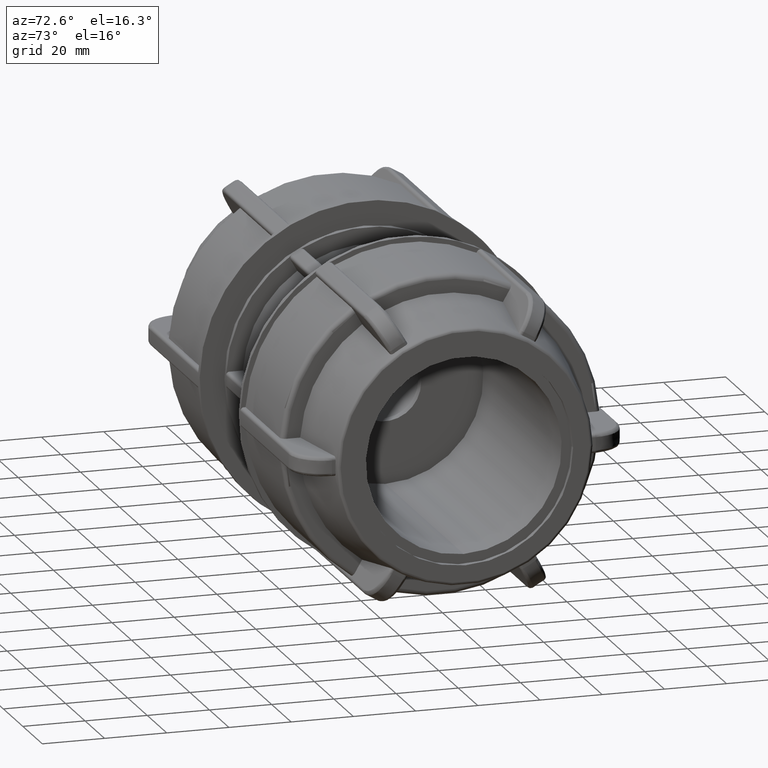
[diagram: clean part render]
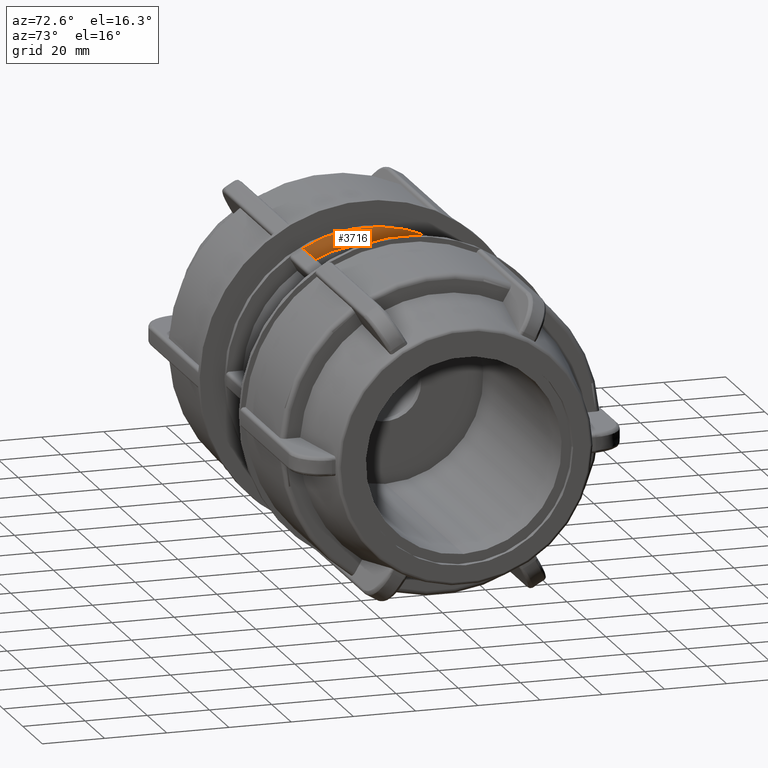
[diagram: same view with one face highlighted and labeled with its STEP entity id]
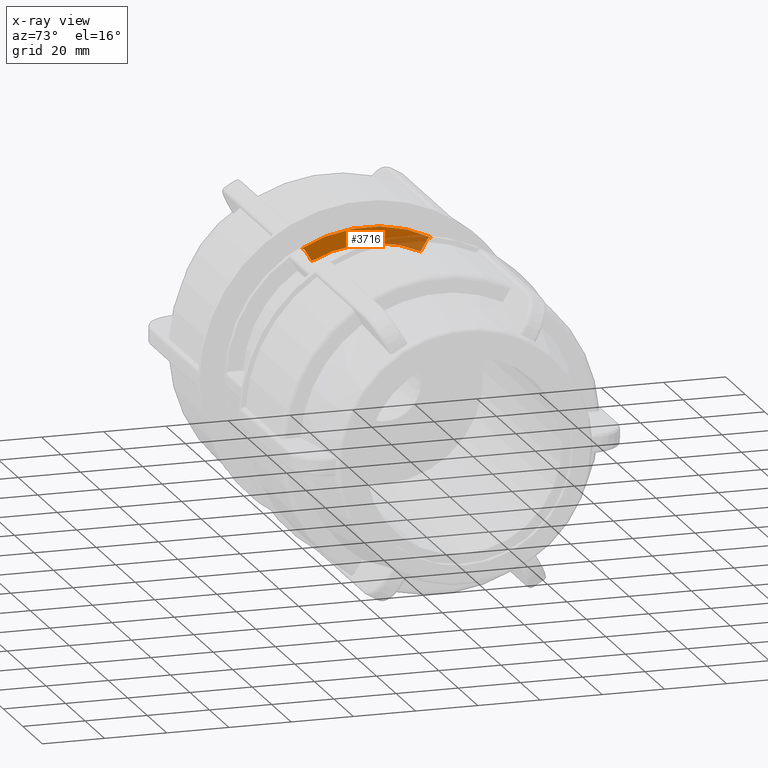
[diagram: x-ray of the same camera — body ghosted, the highlighted face saturated]
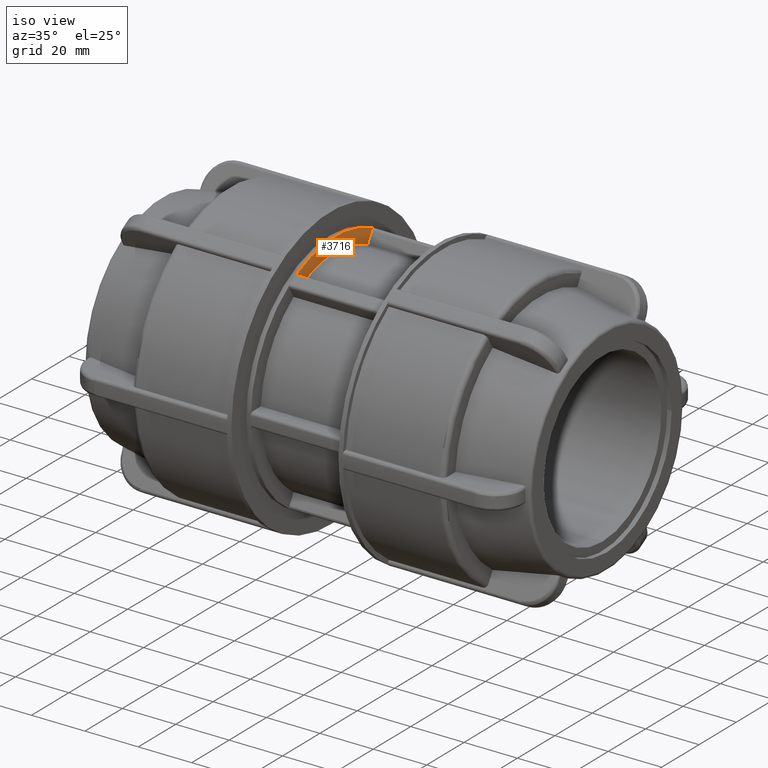
[diagram: same view with one face highlighted and labeled with its STEP entity id]
A machine part, auxiliary view. The second image highlights one B-rep face of the part: STEP entity #3716.
The next image is the same camera in x-ray: the body ghosted, the highlighted face saturated — about 24% of this face is hidden behind the body in this view.
A second angle (iso view) of the same face is appended — the face is thin or edge-on in the first view.
In plain terms, the highlighted planar face has unit normal (-1, -0, 0).
Its self-contained STEP definition (entity closure, byte-faithful):
#227=PLANE('',#3987);
#330=FACE_OUTER_BOUND('',#567,.T.);
#567=EDGE_LOOP('',(#2571,#2572,#2573,#2574,#2575,#2576));
#795=LINE('',#5488,#1023);
#831=LINE('',#5625,#1059);
#1023=VECTOR('',#4377,4.29968736925098);
#1059=VECTOR('',#4509,4.29968736925101);
#1248=CIRCLE('',#3925,1.06);
#1252=CIRCLE('',#3932,45.05);
#1268=CIRCLE('',#3951,1.06);
#1286=CIRCLE('',#3988,39.75);
#1483=VERTEX_POINT('',#5478);
#1484=VERTEX_POINT('',#5480);
#1486=VERTEX_POINT('',#5486);
#1492=VERTEX_POINT('',#5501);
#1518=VERTEX_POINT('',#5560);
#1539=VERTEX_POINT('',#5624);
#1861=EDGE_CURVE('',#1483,#1484,#1248,.F.);
#1865=EDGE_CURVE('',#1483,#1486,#795,.T.);
#1871=EDGE_CURVE('',#1492,#1484,#1252,.T.);
#1901=EDGE_CURVE('',#1492,#1518,#1268,.F.);
#1933=EDGE_CURVE('',#1539,#1518,#831,.T.);
#1951=EDGE_CURVE('',#1539,#1486,#1286,.T.);
#2571=ORIENTED_EDGE('',*,*,#1865,.T.);
#2572=ORIENTED_EDGE('',*,*,#1951,.F.);
#2573=ORIENTED_EDGE('',*,*,#1933,.T.);
#2574=ORIENTED_EDGE('',*,*,#1901,.F.);
#2575=ORIENTED_EDGE('',*,*,#1871,.T.);
#2576=ORIENTED_EDGE('',*,*,#1861,.F.);
#3716=ADVANCED_FACE('',(#330),#227,.F.);
#3925=AXIS2_PLACEMENT_3D('',#5481,#4370,#4371);
#3932=AXIS2_PLACEMENT_3D('',#5502,#4390,#4391);
#3951=AXIS2_PLACEMENT_3D('',#5561,#4442,#4443);
#3987=AXIS2_PLACEMENT_3D('',#5659,#4546,#4547);
#3988=AXIS2_PLACEMENT_3D('',#5660,#4548,#4549);
#4370=DIRECTION('center_axis',(-1.,-3.06161699786838E-16,0.));
#4371=DIRECTION('ref_axis',(0.,0.27623610487573,0.9610898055661));
#4377=DIRECTION('',(-1.53080849893419E-16,0.499999999999999,-0.866025403784439));
#4390=DIRECTION('center_axis',(1.,3.06161699786838E-16,0.));
#4391=DIRECTION('ref_axis',(0.,0.,-1.));
#4442=DIRECTION('center_axis',(-1.,-3.06161699786838E-16,0.));
#4443=DIRECTION('ref_axis',(0.,-0.276236104875726,0.961089805566101));
#4509=DIRECTION('',(-1.53080849893419E-16,0.5,0.866025403784438));
#4546=DIRECTION('center_axis',(-1.,-3.06161699786838E-16,0.));
#4547=DIRECTION('ref_axis',(0.,0.,1.));
#4548=DIRECTION('center_axis',(1.,3.06161699786838E-16,0.));
#4549=DIRECTION('ref_axis',(0.,0.,-1.));
#5478=CARTESIAN_POINT('',(-18.37,-19.6856605144986,39.3965641916641));
#5480=CARTESIAN_POINT('',(-18.37,-21.1001208748598,39.8031079071259));
#5481=CARTESIAN_POINT('Origin',(-18.37,-20.6036474425101,38.8665641916641));
#5486=CARTESIAN_POINT('',(-18.37,-17.5358168298731,35.6729257015617));
#5488=CARTESIAN_POINT('',(-18.37,-3.31678050083735,11.044832345004));
#5501=CARTESIAN_POINT('',(-18.37,21.1001208748598,39.8031079071259));
#5502=CARTESIAN_POINT('Origin',(-18.37,-5.62419042508422E-15,0.));
#5560=CARTESIAN_POINT('',(-18.37,19.6856605144986,39.3965641916641));
#5561=CARTESIAN_POINT('Origin',(-18.37,20.6036474425101,38.8665641916641));
#5624=CARTESIAN_POINT('',(-18.37,17.5358168298731,35.6729257015617));
#5625=CARTESIAN_POINT('',(-18.37,13.2516747549222,28.2525739609031));
#5659=CARTESIAN_POINT('Origin',(-18.37,45.05,0.));
#5660=CARTESIAN_POINT('Origin',(-18.37,-5.62419042508422E-15,0.));